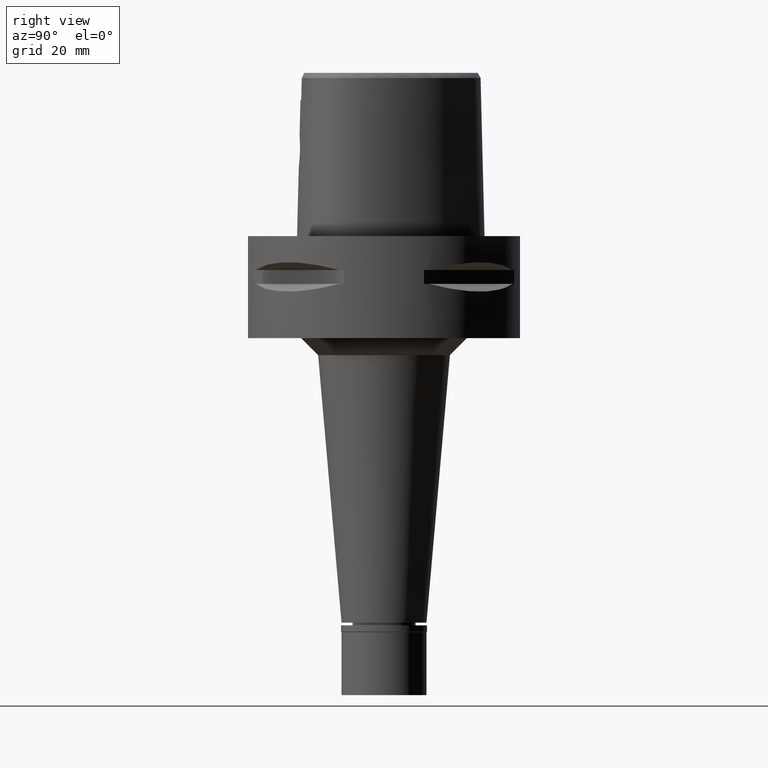
[diagram: clean part render]
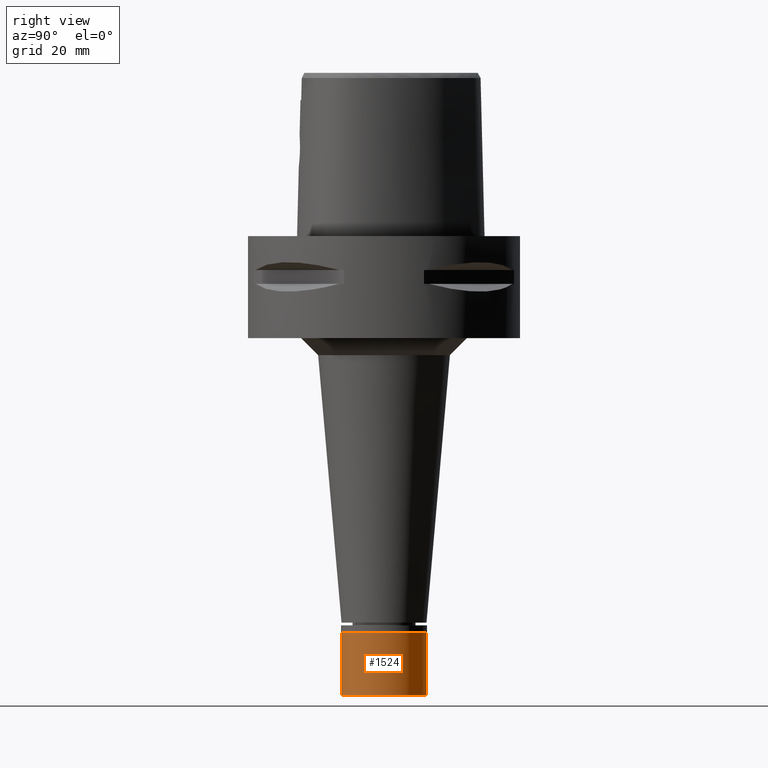
[diagram: same view with one face highlighted and labeled with its STEP entity id]
A machine part, right view. The second image highlights one B-rep face of the part: STEP entity #1524.
In plain terms, the highlighted cylindrical surface (partial cylindrical patch) has radius 12.5 mm, axis along (0, 0, -1).
Its self-contained STEP definition (entity closure, byte-faithful):
#65 = ORIENTED_EDGE ( 'NONE', *, *, #1933, .T. ) ;
#76 = DIRECTION ( 'NONE',  ( 0.0000000000000000000, 0.0000000000000000000, 1.000000000000000000 ) ) ;
#239 = DIRECTION ( 'NONE',  ( 0.0000000000000000000, 1.000000000000000000, 0.0000000000000000000 ) ) ;
#280 = CARTESIAN_POINT ( 'NONE',  ( 0.0000000000000000000, 0.0000000000000000000, 0.0000000000000000000 ) ) ;
#310 = VECTOR ( 'NONE', #4389, 1000.000000000000000 ) ;
#341 = EDGE_CURVE ( 'NONE', #2696, #2745, #450, .T. ) ;
#385 = VECTOR ( 'NONE', #4908, 1000.000000000000000 ) ;
#415 = CIRCLE ( 'NONE', #4008, 12.50000000000000000 ) ;
#450 = LINE ( 'NONE', #4484, #385 ) ;
#755 = CARTESIAN_POINT ( 'NONE',  ( 0.0000000000000000000, -12.50000000000000000, -2.000000000000000000 ) ) ;
#767 = DIRECTION ( 'NONE',  ( 0.0000000000000000000, -1.000000000000000000, 0.0000000000000000000 ) ) ;
#804 = AXIS2_PLACEMENT_3D ( 'NONE', #1982, #76, #767 ) ;
#861 = EDGE_LOOP ( 'NONE', ( #3642, #65, #4086, #2469 ) ) ;
#1163 = CARTESIAN_POINT ( 'NONE',  ( 0.0000000000000000000, 12.50000000000000000, -20.50000000000000000 ) ) ;
#1190 = CARTESIAN_POINT ( 'NONE',  ( 0.0000000000000000000, 12.50000000000000000, -2.000000000000000000 ) ) ;
#1524 = ADVANCED_FACE ( 'NONE', ( #4246 ), #5014, .T. ) ;
#1813 = EDGE_CURVE ( 'NONE', #3956, #2745, #4070, .T. ) ;
#1933 = EDGE_CURVE ( 'NONE', #3913, #3956, #4738, .T. ) ;
#1982 = CARTESIAN_POINT ( 'NONE',  ( 0.0000000000000000000, 0.0000000000000000000, -20.50000000000000000 ) ) ;
#2469 = ORIENTED_EDGE ( 'NONE', *, *, #341, .F. ) ;
#2622 = CARTESIAN_POINT ( 'NONE',  ( 0.0000000000000000000, -12.50000000000000000, -20.50000000000000000 ) ) ;
#2634 = DIRECTION ( 'NONE',  ( 0.0000000000000000000, 0.0000000000000000000, -1.000000000000000000 ) ) ;
#2696 = VERTEX_POINT ( 'NONE', #1190 ) ;
#2745 = VERTEX_POINT ( 'NONE', #1163 ) ;
#3096 = CARTESIAN_POINT ( 'NONE',  ( 0.0000000000000000000, -12.50000000000000000, -2.000000000000000000 ) ) ;
#3099 = DIRECTION ( 'NONE',  ( 0.0000000000000000000, -1.000000000000000000, 0.0000000000000000000 ) ) ;
#3518 = DIRECTION ( 'NONE',  ( 0.0000000000000000000, 0.0000000000000000000, -1.000000000000000000 ) ) ;
#3642 = ORIENTED_EDGE ( 'NONE', *, *, #4644, .T. ) ;
#3913 = VERTEX_POINT ( 'NONE', #3096 ) ;
#3956 = VERTEX_POINT ( 'NONE', #2622 ) ;
#4008 = AXIS2_PLACEMENT_3D ( 'NONE', #4129, #2634, #239 ) ;
#4070 = CIRCLE ( 'NONE', #804, 12.50000000000000000 ) ;
#4086 = ORIENTED_EDGE ( 'NONE', *, *, #1813, .T. ) ;
#4129 = CARTESIAN_POINT ( 'NONE',  ( 0.0000000000000000000, 0.0000000000000000000, -2.000000000000000000 ) ) ;
#4246 = FACE_OUTER_BOUND ( 'NONE', #861, .T. ) ;
#4307 = AXIS2_PLACEMENT_3D ( 'NONE', #280, #3518, #3099 ) ;
#4389 = DIRECTION ( 'NONE',  ( 0.0000000000000000000, 0.0000000000000000000, -1.000000000000000000 ) ) ;
#4484 = CARTESIAN_POINT ( 'NONE',  ( 0.0000000000000000000, 12.50000000000000000, -2.000000000000000000 ) ) ;
#4644 = EDGE_CURVE ( 'NONE', #2696, #3913, #415, .T. ) ;
#4738 = LINE ( 'NONE', #755, #310 ) ;
#4908 = DIRECTION ( 'NONE',  ( 0.0000000000000000000, 0.0000000000000000000, -1.000000000000000000 ) ) ;
#5014 = CYLINDRICAL_SURFACE ( 'NONE', #4307, 12.50000000000000000 ) ;